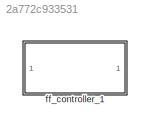
MODEL slx_2a772c933531
KIND model
CONFIG AbsTol = auto
CONFIG EnableMultiTasking = off
CONFIG FixedStep = auto
CONFIG MaxStep = auto
CONFIG MinStep = auto
CONFIG RelTol = 1e-3
CONFIG SampleTimeConstraint = Unconstrained
CONFIG SolverName = VariableStepAuto
CONFIG StartTime = 0.0
CONFIG StopTime = 10.0
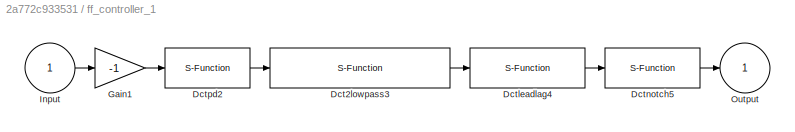
BLOCK [SubSystem] ff_controller_1
BLOCK [S-Function] ff_controller_1/Dct2lowpass3
  EnableBusSupport = off
  FunctionName = dlowpass2
  Parameters = f_den, b_den, 0.001
  SFcnIsStateOwnerBlock = off
  SFunctionDeploymentMode = off
BLOCK [S-Function] ff_controller_1/Dctleadlag4
  EnableBusSupport = off
  FunctionName = dleadlag
  Parameters = f_num, f_den, 0.001
  SFcnIsStateOwnerBlock = off
  SFunctionDeploymentMode = off
BLOCK [S-Function] ff_controller_1/Dctnotch5
  EnableBusSupport = off
  FunctionName = dnotch
  Parameters = f_num, b_num, f_den, b_den, 0.001
  SFcnIsStateOwnerBlock = off
  SFunctionDeploymentMode = off
BLOCK [S-Function] ff_controller_1/Dctpd2
  EnableBusSupport = off
  FunctionName = dpd
  Parameters = kp, kv, 0.001
  SFcnIsStateOwnerBlock = off
  SFunctionDeploymentMode = off
BLOCK [Gain] ff_controller_1/Gain1
  Gain = -1
BLOCK [Inport] ff_controller_1/Input
BLOCK [Outport] ff_controller_1/Output
LINE ff_controller_1/Dct2lowpass3:1 -> ff_controller_1/Dctleadlag4:1
LINE ff_controller_1/Dctleadlag4:1 -> ff_controller_1/Dctnotch5:1
LINE ff_controller_1/Dctnotch5:1 -> ff_controller_1/Output:1
LINE ff_controller_1/Dctpd2:1 -> ff_controller_1/Dct2lowpass3:1
LINE ff_controller_1/Gain1:1 -> ff_controller_1/Dctpd2:1
LINE ff_controller_1/Input:1 -> ff_controller_1/Gain1:1
